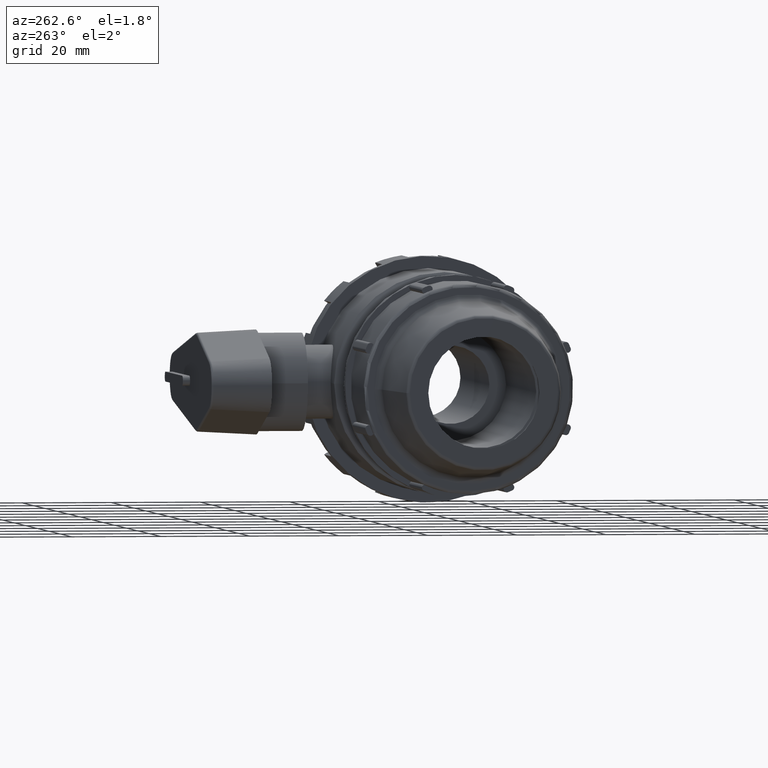
[diagram: clean part render]
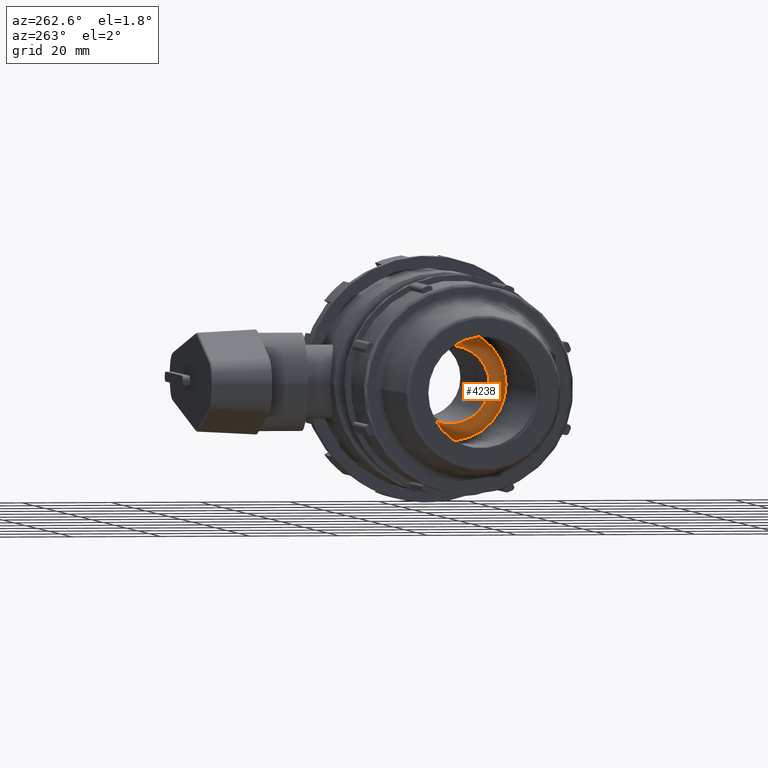
[diagram: same view with one face highlighted and labeled with its STEP entity id]
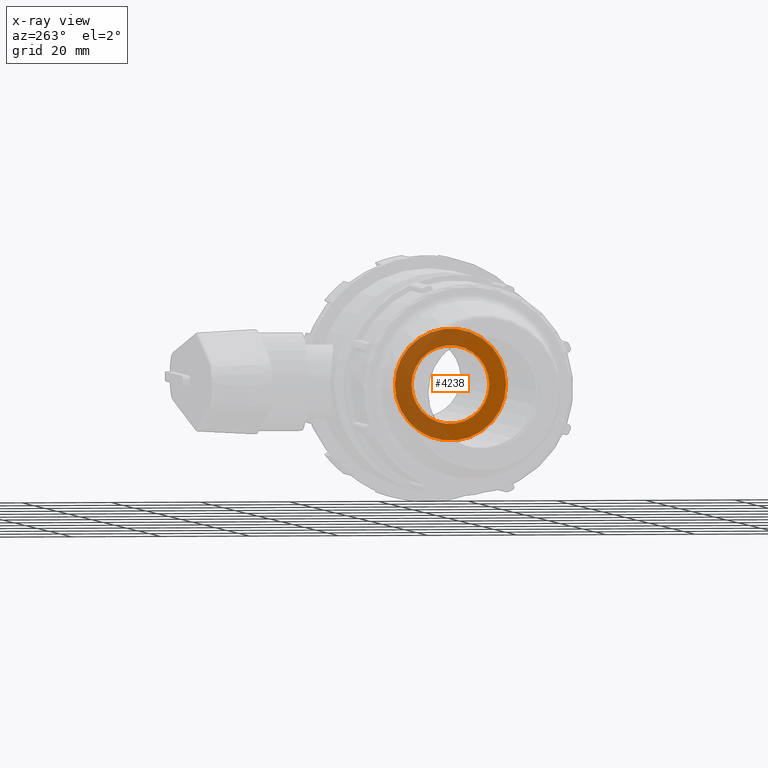
[diagram: x-ray of the same camera — body ghosted, the highlighted face saturated]
A machine part, auxiliary view. The second image highlights one B-rep face of the part: STEP entity #4238.
The next image is the same camera in x-ray: the body ghosted, the highlighted face saturated — about 54% of this face is hidden behind the body in this view.
In plain terms, the highlighted planar face has unit normal (-1, 0, 0).
Its self-contained STEP definition (entity closure, byte-faithful):
#106=FACE_BOUND('',#867,.T.);
#206=PLANE('',#4737);
#586=FACE_OUTER_BOUND('',#866,.T.);
#866=EDGE_LOOP('',(#3914));
#867=EDGE_LOOP('',(#3915));
#1622=CIRCLE('',#4736,12.5);
#1623=CIRCLE('',#4738,8.75);
#2035=VERTEX_POINT('',#8590);
#2036=VERTEX_POINT('',#8593);
#2662=EDGE_CURVE('',#2035,#2035,#1622,.T.);
#2663=EDGE_CURVE('',#2036,#2036,#1623,.T.);
#3914=ORIENTED_EDGE('',*,*,#2662,.T.);
#3915=ORIENTED_EDGE('',*,*,#2663,.F.);
#4238=ADVANCED_FACE('',(#586,#106),#206,.T.);
#4736=AXIS2_PLACEMENT_3D('',#8591,#5974,#5975);
#4737=AXIS2_PLACEMENT_3D('',#8592,#5976,#5977);
#4738=AXIS2_PLACEMENT_3D('',#8594,#5978,#5979);
#5974=DIRECTION('center_axis',(-1.,0.,0.));
#5975=DIRECTION('ref_axis',(0.,0.,1.));
#5976=DIRECTION('center_axis',(-1.,0.,0.));
#5977=DIRECTION('ref_axis',(0.,0.,1.));
#5978=DIRECTION('center_axis',(-1.,0.,0.));
#5979=DIRECTION('ref_axis',(0.,0.,1.));
#8590=CARTESIAN_POINT('',(-24.6666666666667,12.5,0.));
#8591=CARTESIAN_POINT('Origin',(-24.6666666666667,0.,0.));
#8592=CARTESIAN_POINT('Origin',(-24.6666666666667,8.75,0.));
#8593=CARTESIAN_POINT('',(-24.6666666666667,8.75,0.));
#8594=CARTESIAN_POINT('Origin',(-24.6666666666667,0.,0.));